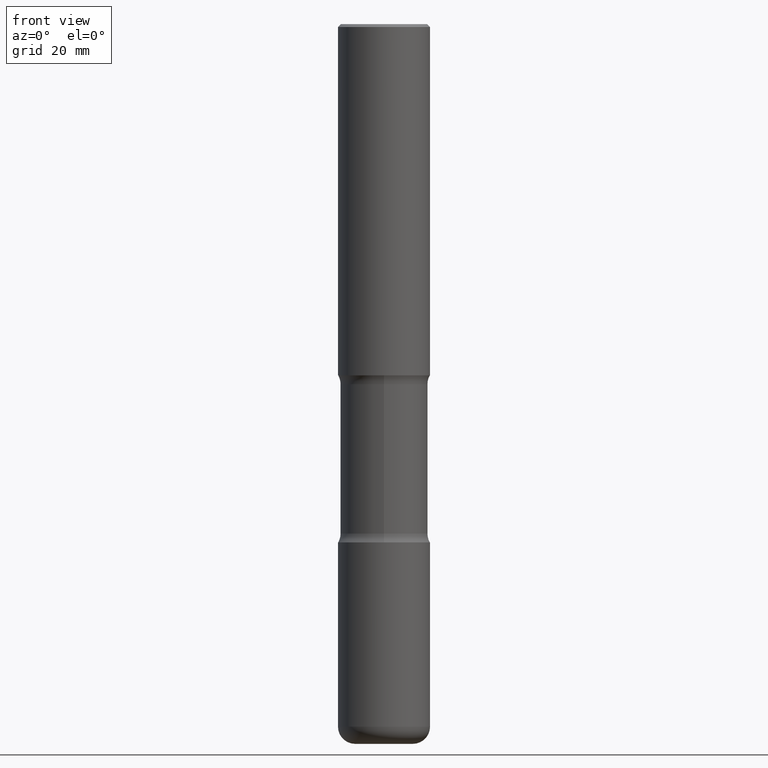
[diagram: clean part render]
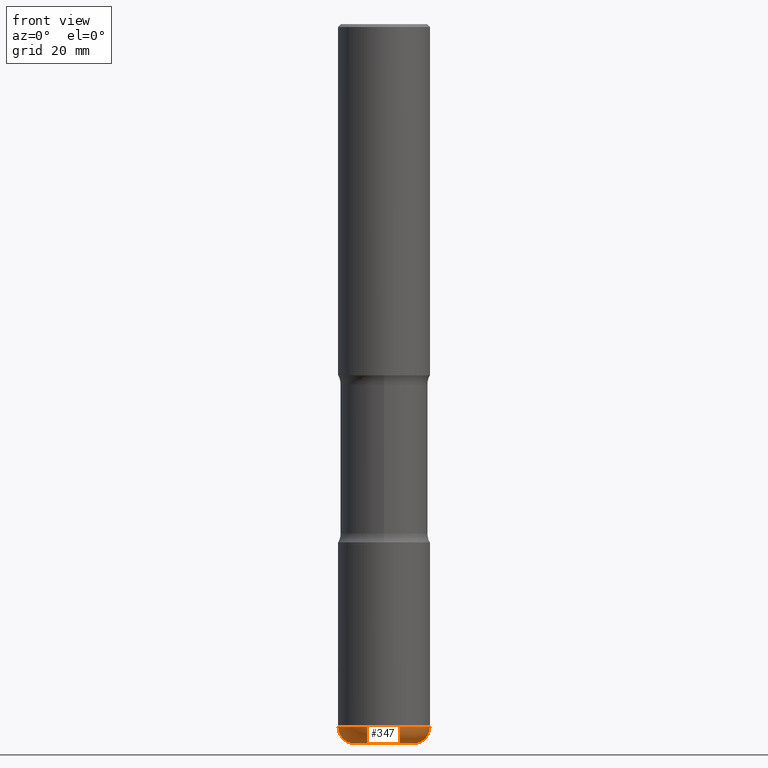
[diagram: same view with one face highlighted and labeled with its STEP entity id]
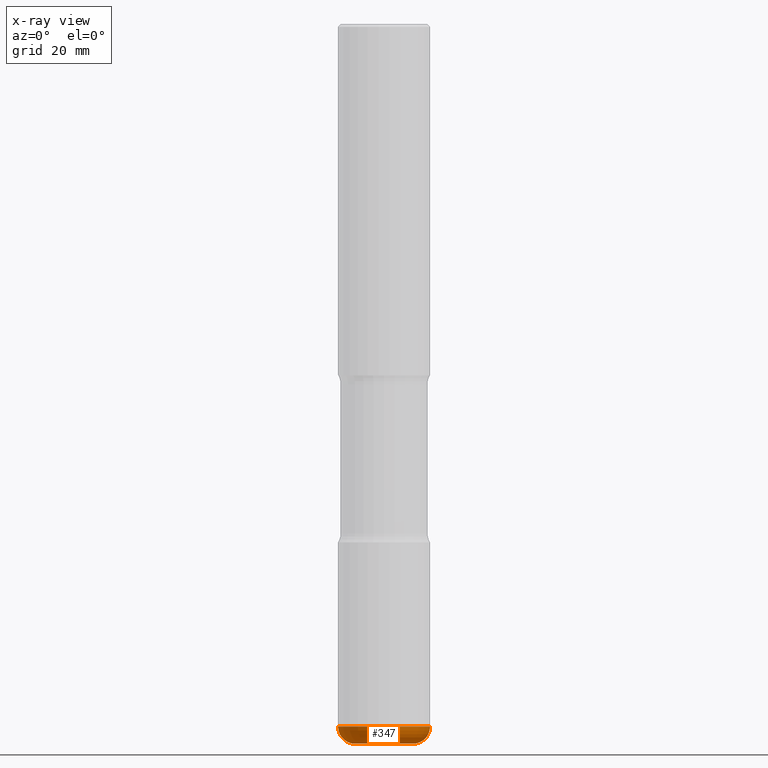
[diagram: x-ray of the same camera — body ghosted, the highlighted face saturated]
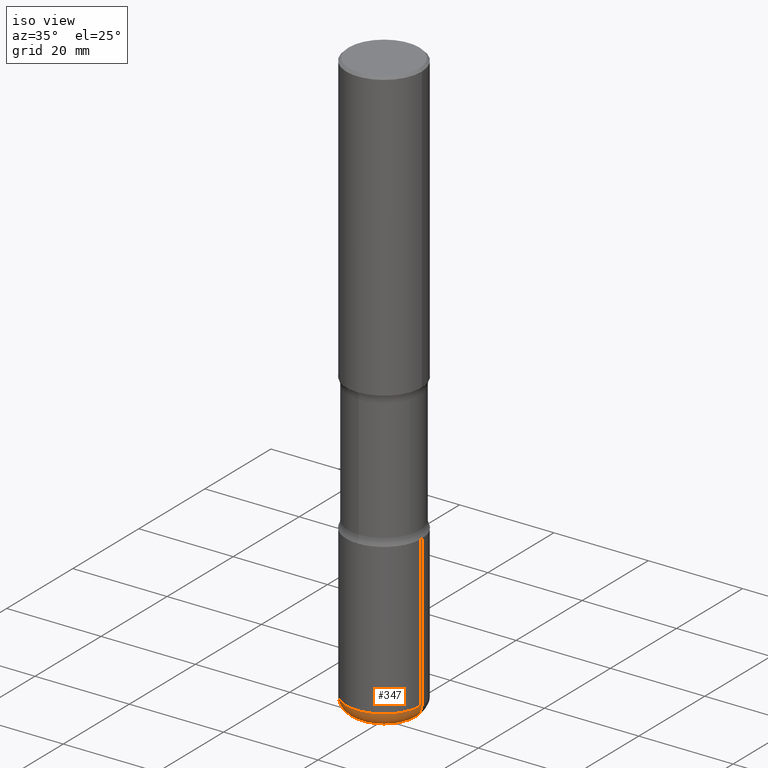
[diagram: same view with one face highlighted and labeled with its STEP entity id]
A machine part, front view. The second image highlights one B-rep face of the part: STEP entity #347.
The next image is the same camera in x-ray: the body ghosted, the highlighted face saturated — about 0% of this face is hidden behind the body in this view.
A second angle (iso view) of the same face is appended — the face is thin or edge-on in the first view.
In plain terms, the highlighted toroidal blend (fillet) surface has major radius 5 mm and minor (blend) radius 2.9997 mm.
Its self-contained STEP definition (entity closure, byte-faithful):
#25 = DIRECTION ( 'NONE',  ( -2.445468806185136597E-29, 3.491481338843145583E-15, 1.000000000000000000 ) ) ;
#46 = CIRCLE ( 'NONE', #548, 0.1181000000000000660 ) ;
#71 = EDGE_LOOP ( 'NONE', ( #119, #351, #202, #313 ) ) ;
#89 = VERTEX_POINT ( 'NONE', #488 ) ;
#111 = VERTEX_POINT ( 'NONE', #381 ) ;
#119 = ORIENTED_EDGE ( 'NONE', *, *, #426, .F. ) ;
#123 = DIRECTION ( 'NONE',  ( 1.000000000000000000, -6.982962677686273021E-15, 0.000000000000000000 ) ) ;
#135 = AXIS2_PLACEMENT_3D ( 'NONE', #238, #416, #340 ) ;
#157 = CARTESIAN_POINT ( 'NONE',  ( -0.1968500000000004135, -1.537157979138763122E-14, -4.803199999999998582 ) ) ;
#181 = AXIS2_PLACEMENT_3D ( 'NONE', #320, #466, #520 ) ;
#196 = EDGE_CURVE ( 'NONE', #89, #547, #233, .T. ) ;
#202 = ORIENTED_EDGE ( 'NONE', *, *, #196, .T. ) ;
#206 = EDGE_CURVE ( 'NONE', #208, #89, #372, .T. ) ;
#208 = VERTEX_POINT ( 'NONE', #386 ) ;
#223 = DIRECTION ( 'NONE',  ( 1.000000000000000000, -6.982962677686265133E-15, 4.883557194083112901E-29 ) ) ;
#226 = TOROIDAL_SURFACE ( 'NONE', #412, 0.1968500000000004135, 0.1181000000000000522 ) ;
#233 = CIRCLE ( 'NONE', #135, 0.1181000000000000660 ) ;
#238 = CARTESIAN_POINT ( 'NONE',  ( 0.1968500000000004135, -1.814487936983393456E-14, -4.803199999999998582 ) ) ;
#292 = CARTESIAN_POINT ( 'NONE',  ( 1.203488563587890921E-28, -1.718262711284876708E-14, -4.921299999999998676 ) ) ;
#299 = CARTESIAN_POINT ( 'NONE',  ( 1.174607576986844421E-28, -1.677028316673139137E-14, -4.803199999999998582 ) ) ;
#313 = ORIENTED_EDGE ( 'NONE', *, *, #377, .F. ) ;
#318 = DIRECTION ( 'NONE',  ( -1.000000000000000000, 7.105427357601000281E-15, 0.000000000000000000 ) ) ;
#320 = CARTESIAN_POINT ( 'NONE',  ( 1.174607576986844421E-28, -1.677028316673139137E-14, -4.803199999999998582 ) ) ;
#340 = DIRECTION ( 'NONE',  ( 1.000000000000000000, -6.982962677686269077E-15, 0.000000000000000000 ) ) ;
#347 = ADVANCED_FACE ( 'NONE', ( #357 ), #226, .T. ) ;
#351 = ORIENTED_EDGE ( 'NONE', *, *, #206, .T. ) ;
#357 = FACE_OUTER_BOUND ( 'NONE', #71, .T. ) ;
#372 = CIRCLE ( 'NONE', #398, 0.1968500000000004135 ) ;
#373 = DIRECTION ( 'NONE',  ( 7.105427357601001859E-15, 1.000000000000000000, -3.491481338843145583E-15 ) ) ;
#377 = EDGE_CURVE ( 'NONE', #111, #547, #486, .T. ) ;
#381 = CARTESIAN_POINT ( 'NONE',  ( -0.3149500000000005073, -1.453242882045495223E-14, -4.803199999999998582 ) ) ;
#386 = CARTESIAN_POINT ( 'NONE',  ( -0.1968500000000004135, -1.515817627897998273E-14, -4.921299999999998676 ) ) ;
#398 = AXIS2_PLACEMENT_3D ( 'NONE', #292, #25, #123 ) ;
#412 = AXIS2_PLACEMENT_3D ( 'NONE', #299, #525, #223 ) ;
#416 = DIRECTION ( 'NONE',  ( -6.982962677686266711E-15, -1.000000000000000000, 3.491481338843145583E-15 ) ) ;
#426 = EDGE_CURVE ( 'NONE', #208, #111, #46, .T. ) ;
#427 = CARTESIAN_POINT ( 'NONE',  ( 0.3149500000000005073, -1.896956726206868282E-14, -4.803199999999998582 ) ) ;
#466 = DIRECTION ( 'NONE',  ( -2.445468806185136597E-29, 3.491481338843145583E-15, 1.000000000000000000 ) ) ;
#486 = CIRCLE ( 'NONE', #181, 0.3149500000000005073 ) ;
#488 = CARTESIAN_POINT ( 'NONE',  ( 0.1968500000000004135, -1.855722331595131342E-14, -4.921299999999998676 ) ) ;
#520 = DIRECTION ( 'NONE',  ( 1.000000000000000000, -6.982962677686265133E-15, 0.000000000000000000 ) ) ;
#525 = DIRECTION ( 'NONE',  ( -2.445468806185136597E-29, 3.491481338843145583E-15, 1.000000000000000000 ) ) ;
#547 = VERTEX_POINT ( 'NONE', #427 ) ;
#548 = AXIS2_PLACEMENT_3D ( 'NONE', #157, #373, #318 ) ;